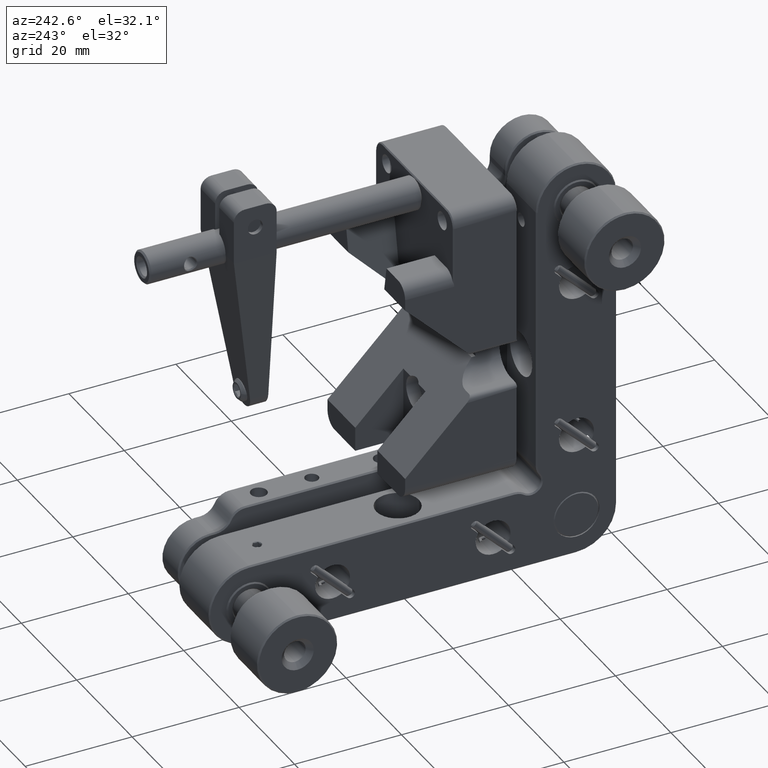
[diagram: clean part render]
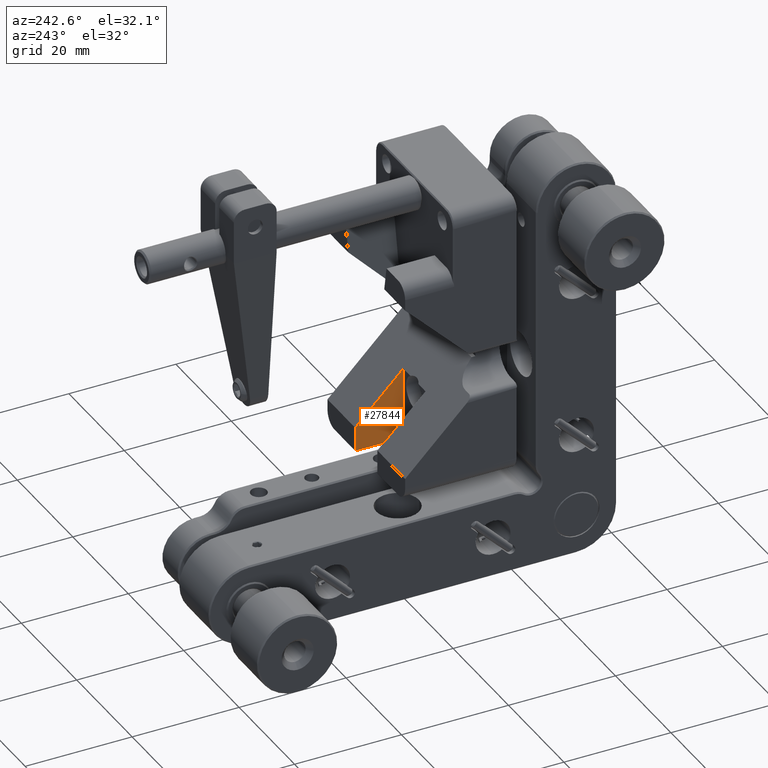
[diagram: same view with one face highlighted and labeled with its STEP entity id]
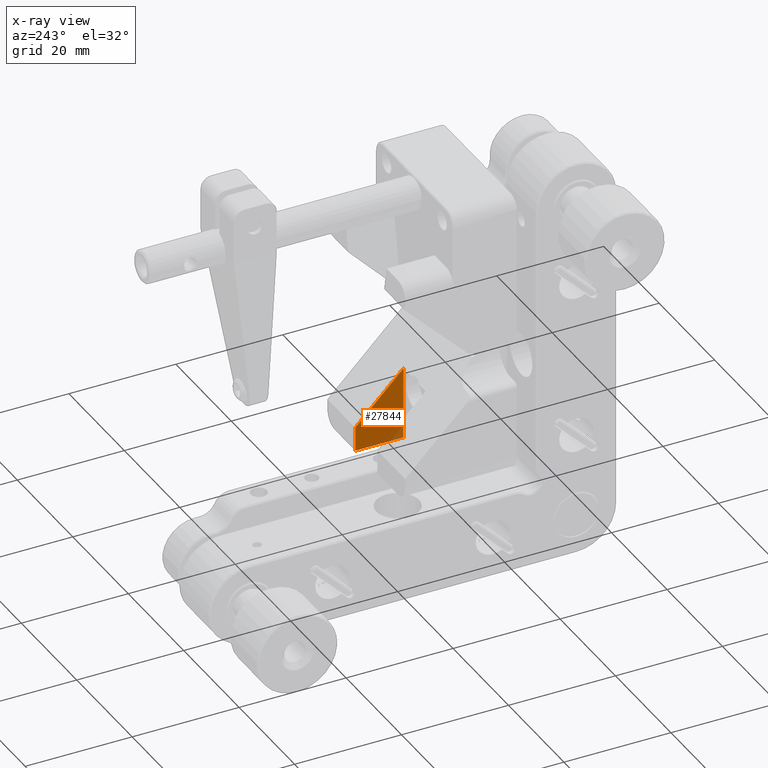
[diagram: x-ray of the same camera — body ghosted, the highlighted face saturated]
A machine part, auxiliary view. The second image highlights one B-rep face of the part: STEP entity #27844.
The next image is the same camera in x-ray: the body ghosted, the highlighted face saturated — about 4% of this face is hidden behind the body in this view.
In plain terms, the highlighted planar face has unit normal (-1, 0, 0).
Its self-contained STEP definition (entity closure, byte-faithful):
#766 = DIRECTION ( 'NONE',  ( 0.000000000000000000, 0.000000000000000000, 1.000000000000000000 ) ) ;
#1230 = FACE_OUTER_BOUND ( 'NONE', #20400, .T. ) ;
#1257 = LINE ( 'NONE', #7980, #2300 ) ;
#2300 = VECTOR ( 'NONE', #8216, 1000.000000000000114 ) ;
#2304 = VERTEX_POINT ( 'NONE', #41534 ) ;
#2655 = VECTOR ( 'NONE', #14580, 1000.000000000000000 ) ;
#3834 = CARTESIAN_POINT ( 'NONE',  ( 15.49606781186539806, -0.09999999999926355299, -21.00000000000009948 ) ) ;
#4235 = VERTEX_POINT ( 'NONE', #26427 ) ;
#4731 = VERTEX_POINT ( 'NONE', #3834 ) ;
#5693 = ORIENTED_EDGE ( 'NONE', *, *, #45799, .F. ) ;
#6382 = ORIENTED_EDGE ( 'NONE', *, *, #23310, .T. ) ;
#7952 = LINE ( 'NONE', #23308, #24215 ) ;
#7980 = CARTESIAN_POINT ( 'NONE',  ( 15.49606781186539983, 1.474835277548619095, -18.06118805302699926 ) ) ;
#8216 = DIRECTION ( 'NONE',  ( 0.000000000000000000, -0.7071067811865460184, 0.7071067811865489050 ) ) ;
#8775 = DIRECTION ( 'NONE',  ( 0.000000000000000000, -0.000000000000000000, 1.000000000000000000 ) ) ;
#8969 = VECTOR ( 'NONE', #8775, 1000.000000000000000 ) ;
#13385 = CARTESIAN_POINT ( 'NONE',  ( 15.49606781186543181, -9.099999999999269562, -21.00000000000009948 ) ) ;
#13625 = ORIENTED_EDGE ( 'NONE', *, *, #26672, .F. ) ;
#14082 = VERTEX_POINT ( 'NONE', #13385 ) ;
#14111 = EDGE_CURVE ( 'NONE', #14082, #4731, #47479, .T. ) ;
#14580 = DIRECTION ( 'NONE',  ( 0.000000000000000000, 1.000000000000000000, 0.000000000000000000 ) ) ;
#15620 = CARTESIAN_POINT ( 'NONE',  ( 15.49606781186549931, -10.00119999999930087, -6.133788053026889564 ) ) ;
#20400 = EDGE_LOOP ( 'NONE', ( #5693, #13625, #37056, #6382 ) ) ;
#22833 = DIRECTION ( 'NONE',  ( 0.000000000000000000, 0.000000000000000000, 1.000000000000000000 ) ) ;
#23308 = CARTESIAN_POINT ( 'NONE',  ( 15.49606781186549931, -9.099999999999269562, -6.133788053026889564 ) ) ;
#23310 = EDGE_CURVE ( 'NONE', #14082, #4235, #7952, .T. ) ;
#24215 = VECTOR ( 'NONE', #766, 1000.000000000000000 ) ;
#26345 = AXIS2_PLACEMENT_3D ( 'NONE', #15620, #30271, #22833 ) ;
#26427 = CARTESIAN_POINT ( 'NONE',  ( 15.49606781186543358, -9.099999999999296207, -7.486352775479024224 ) ) ;
#26672 = EDGE_CURVE ( 'NONE', #4731, #2304, #33966, .T. ) ;
#27844 = ADVANCED_FACE ( 'NONE', ( #1230 ), #34552, .T. ) ;
#28995 = CARTESIAN_POINT ( 'NONE',  ( 15.49606781186539806, -22.98119999999940077, -21.00000000000009948 ) ) ;
#30271 = DIRECTION ( 'NONE',  ( -1.000000000000000000, 0.000000000000000000, 0.000000000000000000 ) ) ;
#33966 = LINE ( 'NONE', #38512, #8969 ) ;
#34552 = PLANE ( 'NONE',  #26345 ) ;
#37056 = ORIENTED_EDGE ( 'NONE', *, *, #14111, .F. ) ;
#38512 = CARTESIAN_POINT ( 'NONE',  ( 15.49606781186539983, -0.09999999999924209793, -21.45256472245219825 ) ) ;
#41534 = CARTESIAN_POINT ( 'NONE',  ( 15.49606781186540161, -0.09999999999926402483, -16.48635277547909794 ) ) ;
#45799 = EDGE_CURVE ( 'NONE', #2304, #4235, #1257, .T. ) ;
#47479 = LINE ( 'NONE', #28995, #2655 ) ;